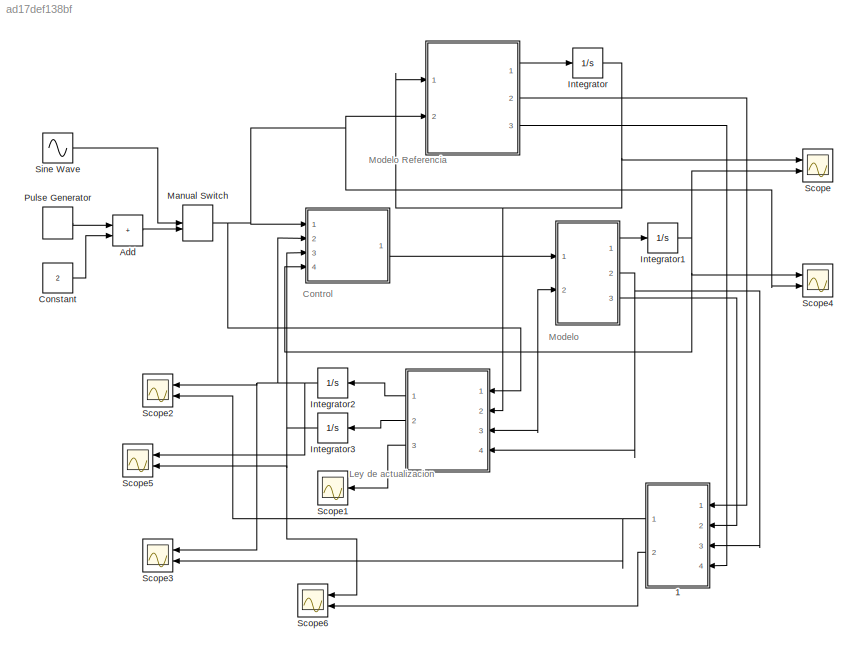
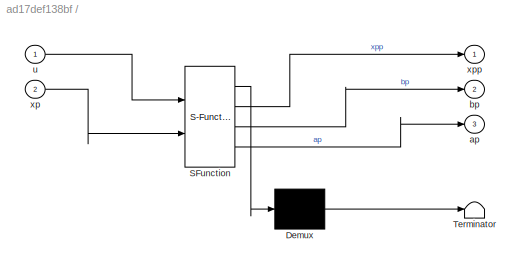
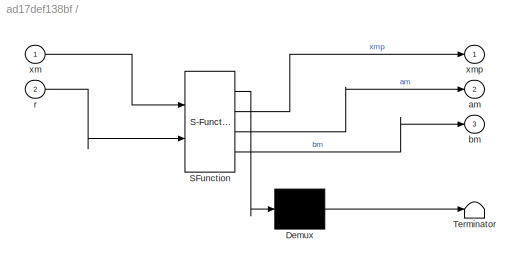
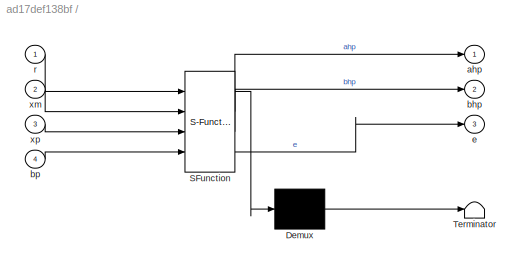
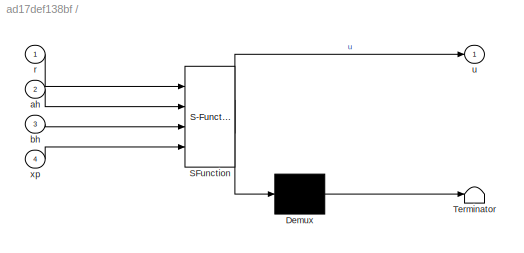
MODEL slx_ad17def138bf
KIND model
CONFIG AbsTol = auto
CONFIG EnableMultiTasking = off
CONFIG FixedStep = auto
CONFIG MaxStep = auto
CONFIG MinStep = auto
CONFIG RelTol = 1e-3
CONFIG SampleTimeConstraint = Unconstrained
CONFIG SolverName = VariableStepAuto
CONFIG StartTime = 0.0
CONFIG StopTime = 30
BLOCK [SubSystem]   
  ErrorFcn = Stateflow.Translate.translate
  PermitHierarchicalResolution = ExplicitOnly
  Ports = [2, 3]
  RequestExecContextInheritance = off
  SFBlockType = MATLAB Function
  TreatAsAtomicUnit = on
BLOCK [SubSystem]    
  ErrorFcn = Stateflow.Translate.translate
  PermitHierarchicalResolution = ExplicitOnly
  Ports = [2, 3]
  RequestExecContextInheritance = off
  SFBlockType = MATLAB Function
  TreatAsAtomicUnit = on
BLOCK [SubSystem]     
  ErrorFcn = Stateflow.Translate.translate
  NameLocation = top
  PermitHierarchicalResolution = ExplicitOnly
  Ports = [4, 3]
  RequestExecContextInheritance = off
  SFBlockType = MATLAB Function
  TreatAsAtomicUnit = on
BLOCK [SubSystem]      
  ErrorFcn = Stateflow.Translate.translate
  PermitHierarchicalResolution = ExplicitOnly
  Ports = [4, 1]
  RequestExecContextInheritance = off
  SFBlockType = MATLAB Function
  TreatAsAtomicUnit = on
BLOCK [Demux]      / Demux 
  Outputs = 1
  Ports = [1, 1]
BLOCK [S-Function]      / SFunction 
  EnableBusSupport = on
  FunctionName = sf_sfun
  PortCounts = [4 2]
  Ports = [4, 2]
  SFcnIsStateOwnerBlock = off
  SFunctionDeploymentMode = off
  Tag = Stateflow S-Function 3
BLOCK [Terminator]      / Terminator 
BLOCK [Inport]      /ah
  Port = 2
BLOCK [Inport]      /bh
  Port = 3
BLOCK [Inport]      /r
BLOCK [Outport]      /u
BLOCK [Inport]      /xp
  Port = 4
BLOCK [Demux]     / Demux 
  Outputs = 1
  Ports = [1, 1]
BLOCK [S-Function]     / SFunction 
  EnableBusSupport = on
  FunctionName = sf_sfun
  PortCounts = [4 4]
  Ports = [4, 4]
  SFcnIsStateOwnerBlock = off
  SFunctionDeploymentMode = off
  Tag = Stateflow S-Function 4
BLOCK [Terminator]     / Terminator 
BLOCK [Outport]     /ahp
BLOCK [Outport]     /bhp
  Port = 2
BLOCK [Inport]     /bp
  Port = 4
BLOCK [Outport]     /e
  Port = 3
BLOCK [Inport]     /r
BLOCK [Inport]     /xm
  Port = 2
BLOCK [Inport]     /xp
  Port = 3
BLOCK [Demux]    / Demux 
  Outputs = 1
  Ports = [1, 1]
BLOCK [S-Function]    / SFunction 
  EnableBusSupport = on
  FunctionName = sf_sfun
  PortCounts = [2 4]
  Ports = [2, 4]
  SFcnIsStateOwnerBlock = off
  SFunctionDeploymentMode = off
  Tag = Stateflow S-Function 1
BLOCK [Terminator]    / Terminator 
BLOCK [Outport]    /am
  Port = 2
BLOCK [Outport]    /bm
  Port = 3
BLOCK [Inport]    /r
  Port = 2
BLOCK [Inport]    /xm
BLOCK [Outport]    /xmp
BLOCK [Demux]   / Demux 
  Outputs = 1
  Ports = [1, 1]
BLOCK [S-Function]   / SFunction 
  EnableBusSupport = on
  FunctionName = sf_sfun
  PortCounts = [2 4]
  Ports = [2, 4]
  SFcnIsStateOwnerBlock = off
  SFunctionDeploymentMode = off
  Tag = Stateflow S-Function 2
BLOCK [Terminator]   / Terminator 
BLOCK [Outport]   /ap
  Port = 3
BLOCK [Outport]   /bp
  Port = 2
BLOCK [Inport]   /u
BLOCK [Inport]   /xp
  Port = 2
BLOCK [Outport]   /xpp
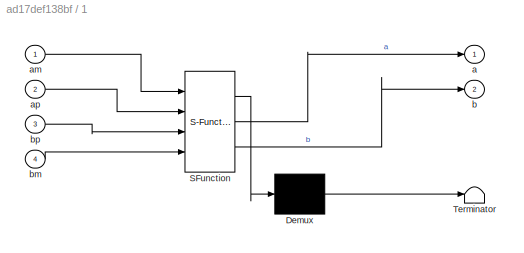
BLOCK [SubSystem]   1
  ErrorFcn = Stateflow.Translate.translate
  NameLocation = top
  PermitHierarchicalResolution = ExplicitOnly
  Ports = [4, 2]
  RequestExecContextInheritance = off
  SFBlockType = MATLAB Function
  TreatAsAtomicUnit = on
BLOCK [Demux]   1/ Demux 
  Outputs = 1
  Ports = [1, 1]
BLOCK [S-Function]   1/ SFunction 
  EnableBusSupport = on
  FunctionName = sf_sfun
  PortCounts = [4 3]
  Ports = [4, 3]
  SFcnIsStateOwnerBlock = off
  SFunctionDeploymentMode = off
  Tag = Stateflow S-Function 5
BLOCK [Terminator]   1/ Terminator 
BLOCK [Outport]   1/a
BLOCK [Inport]   1/am
BLOCK [Inport]   1/ap
  Port = 2
BLOCK [Outport]   1/b
  Port = 2
BLOCK [Inport]   1/bm
  Port = 4
BLOCK [Inport]   1/bp
  Port = 3
BLOCK [Sum] Add
  IconShape = rectangular
  Ports = [2, 1]
BLOCK [Constant] Constant
  Value = 2
BLOCK [Integrator] Integrator
  Ports = [1, 1]
BLOCK [Integrator] Integrator1
  Ports = [1, 1]
BLOCK [Integrator] Integrator2
  NameLocation = top
  Ports = [1, 1]
BLOCK [Integrator] Integrator3
  NameLocation = top
  Ports = [1, 1]
BLOCK [ManualSwitch] Manual Switch
BLOCK [DiscretePulseGenerator] Pulse Generator
  Period = 10
  Ports = [0, 1]
  PulseType = Time based
  PulseWidth = 5
BLOCK [Scope] Scope
  Floating = off
  NumInputPorts = 2
  Ports = [2]
  ScopeSpecificationString = Simulink.scopes.TimeScopeBlockCfg('CurrentConfiguration', extmgr.ConfigurationSet(extmgr.Configuration('Core','General UI',true),extmgr.Configuration('Core','Source UI',true),extmgr.Configuration('Sources','WiredSimulink',true),extmgr.Configuration('Visuals','Time Domain',true,'SerializedDisplays',{struct('MinYLimReal','-2.68714','MaxYLimReal','6.50856','YLabelReal','','MinYLimMag','0.00000','MaxY...<+1449ch>
BLOCK [Scope] Scope1
  Floating = off
  NameLocation = top
  NumInputPorts = 1
  Ports = [1]
  ScopeSpecificationString = Simulink.scopes.TimeScopeBlockCfg('CurrentConfiguration', extmgr.ConfigurationSet(extmgr.Configuration('Core','General UI',true),extmgr.Configuration('Core','Source UI',true),extmgr.Configuration('Sources','WiredSimulink',true,'DataLoggingVariableName','ScopeData1'),extmgr.Configuration('Visuals','Time Domain',true,'SerializedDisplays',{struct('MinYLimReal','-1.55007','MaxYLimReal','4.32309','YLab...<+1458ch>
BLOCK [Scope] Scope2
  Floating = off
  NameLocation = top
  NumInputPorts = 2
  Ports = [2]
  ScopeSpecificationString = Simulink.scopes.TimeScopeBlockCfg('CurrentConfiguration', extmgr.ConfigurationSet(extmgr.Configuration('Core','General UI',true),extmgr.Configuration('Core','Source UI',true),extmgr.Configuration('Sources','WiredSimulink',true,'DataLoggingVariableName','ScopeData2'),extmgr.Configuration('Visuals','Time Domain',true,'SerializedDisplays',{struct('MinYLimReal','-4.04296','MaxYLimReal','0.52115','YLab...<+1495ch>
BLOCK [Scope] Scope3
  Floating = off
  NameLocation = top
  NumInputPorts = 2
  Ports = [2]
  ScopeSpecificationString = Simulink.scopes.TimeScopeBlockCfg('CurrentConfiguration', extmgr.ConfigurationSet(extmgr.Configuration('Core','General UI',true),extmgr.Configuration('Core','Source UI',true),extmgr.Configuration('Sources','WiredSimulink',true,'DataLoggingVariableName','ScopeData3'),extmgr.Configuration('Visuals','Time Domain',true,'SerializedDisplays',{struct('MinYLimReal','-4.04296','MaxYLimReal','0.52115','YLab...<+1467ch>
BLOCK [Scope] Scope4
  Floating = off
  NumInputPorts = 2
  Ports = [2]
  ScopeSpecificationString = Simulink.scopes.TimeScopeBlockCfg('CurrentConfiguration', extmgr.ConfigurationSet(extmgr.Configuration('Core','General UI',true),extmgr.Configuration('Core','Source UI',true),extmgr.Configuration('Sources','WiredSimulink',true,'DataLoggingVariableName','ScopeData4'),extmgr.Configuration('Visuals','Time Domain',true,'SerializedDisplays',{struct('MinYLimReal','-2.93667','MaxYLimReal','6.53628','YLab...<+1486ch>
BLOCK [Scope] Scope5
  Floating = off
  NameLocation = top
  NumInputPorts = 2
  Ports = [2]
  ScopeSpecificationString = Simulink.scopes.TimeScopeBlockCfg('CurrentConfiguration', extmgr.ConfigurationSet(extmgr.Configuration('Core','General UI',true),extmgr.Configuration('Core','Source UI',true),extmgr.Configuration('Sources','WiredSimulink',true,'DataLoggingVariableName','ScopeData1'),extmgr.Configuration('Visuals','Time Domain',true,'SerializedDisplays',{struct('MinYLimReal','-4.19352','MaxYLimReal','1.87611','YLab...<+1495ch>
BLOCK [Scope] Scope6
  Floating = off
  NameLocation = top
  NumInputPorts = 2
  Ports = [2]
  ScopeSpecificationString = Simulink.scopes.TimeScopeBlockCfg('CurrentConfiguration', extmgr.ConfigurationSet(extmgr.Configuration('Core','General UI',true),extmgr.Configuration('Core','Source UI',true),extmgr.Configuration('Sources','WiredSimulink',true,'DataLoggingVariableName','ScopeData2'),extmgr.Configuration('Visuals','Time Domain',true,'SerializedDisplays',{struct('MinYLimReal','-0.5092','MaxYLimReal','1.46675','YLabe...<+1465ch>
BLOCK [Sin] Sine Wave
  Amplitude = 2
  Frequency = 4
  Ports = [0, 1]
  SampleTime = 0
ANNOTATION (root): Modelo
ANNOTATION (root): Control
ANNOTATION (root): Ley de actualizacion
ANNOTATION (root): Modelo Referencia
LINE      :1 ->   :1
LINE     :1 -> Integrator2:1
LINE     :2 -> Integrator3:1
LINE     :3 -> Scope1:1
LINE    :1 -> Integrator:1
LINE    :2 ->   1:1
LINE    :3 ->   1:4
NET   1:1 -> Scope2:2, Scope3:2
LINE   1:2 -> Scope6:2
LINE   :1 -> Integrator1:1
NET   :2 ->     :4,   1:3
LINE   :3 ->   1:2
LINE Add:1 -> Manual Switch:2
LINE Constant:1 -> Add:2
NET Integrator1:1 ->      :4,     :3,   :2, Scope4:1, Scope:2
NET Integrator2:1 ->      :2, Scope2:1, Scope3:1, Scope5:1
NET Integrator3:1 ->      :3, Scope5:2, Scope6:1
NET Integrator:1 ->     :2,    :1, Scope:1
NET Manual Switch:1 ->      :1,     :1,    :2, Scope4:2
LINE Pulse Generator:1 -> Add:1
LINE Sine Wave:1 -> Manual Switch:1
note: NET lines group one-source signal fan-out (src -> all destinations, sorted); 1:1 wires keep LINE
CHART     states=1 transitions=1
  STATE_LABEL 'eML_blk_kernel()'
  STATE_LABEL 'SCRIPT:\nfunction [xmp, am,bm]  = fcn(xm,r)\nam = -4;\nbm = 5;\n\nxmp = am*xm + bm*r;'
CHART    states=1 transitions=1
  STATE_LABEL 'eML_blk_kernel()'
  STATE_LABEL 'SCRIPT:\nfunction [xpp,bp,ap]  = fcn(u,xp)\nap = 8;\n%ap = sin(8);\nbp = 5;\n\nxpp = ap*xp + bp*u;'
CHART       states=1 transitions=1
  STATE_LABEL 'eML_blk_kernel()'
  STATE_LABEL 'SCRIPT:\nfunction u  = fcn(r,ah,bh,xp)\n\nu = ah*xp + bh*r;'
CHART      states=1 transitions=1
  STATE_LABEL 'eML_blk_kernel()'
  STATE_LABEL 'SCRIPT:\nfunction [ahp, bhp,e]  = fcn(r,xm,xp,bp)\n%Error de seguimiento\ne = xp - xm;\n\nahp = -sign(bp)*e*xp;\nbhp = -sign(bp)*e*r;'
CHART   1 states=1 transitions=1
  STATE_LABEL 'eML_blk_kernel()'
  STATE_LABEL 'SCRIPT:\nfunction [a,b]  = fcn(am,ap,bp,bm)\n\n\n\na = (am - ap)/bp;\nb = bm/bp;'
CHART  states=0 transitions=0
CHART  states=0 transitions=0
CHART  states=0 transitions=0
CHART  states=0 transitions=0
CHART  states=0 transitions=0
